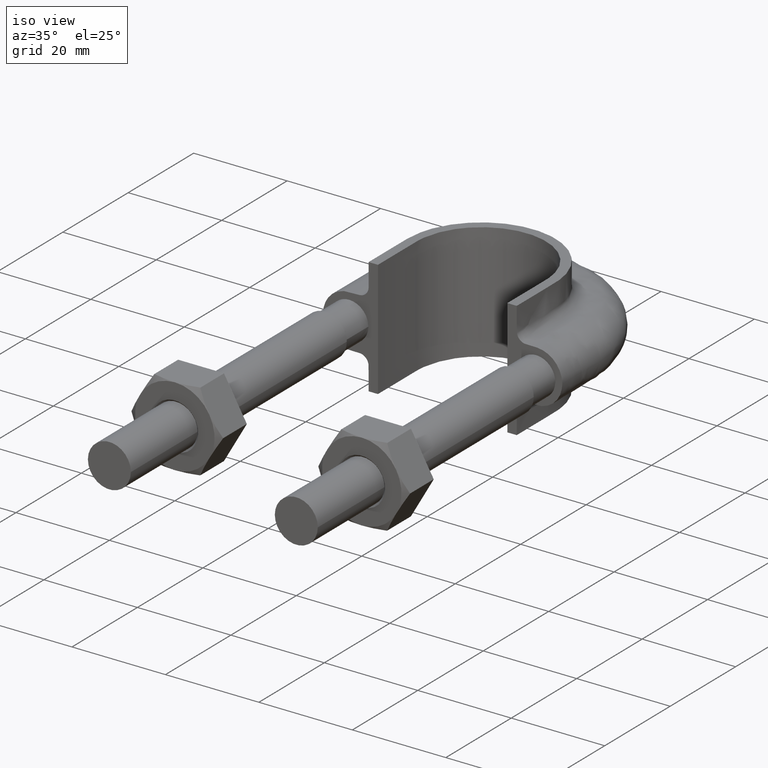
[diagram: clean part render]
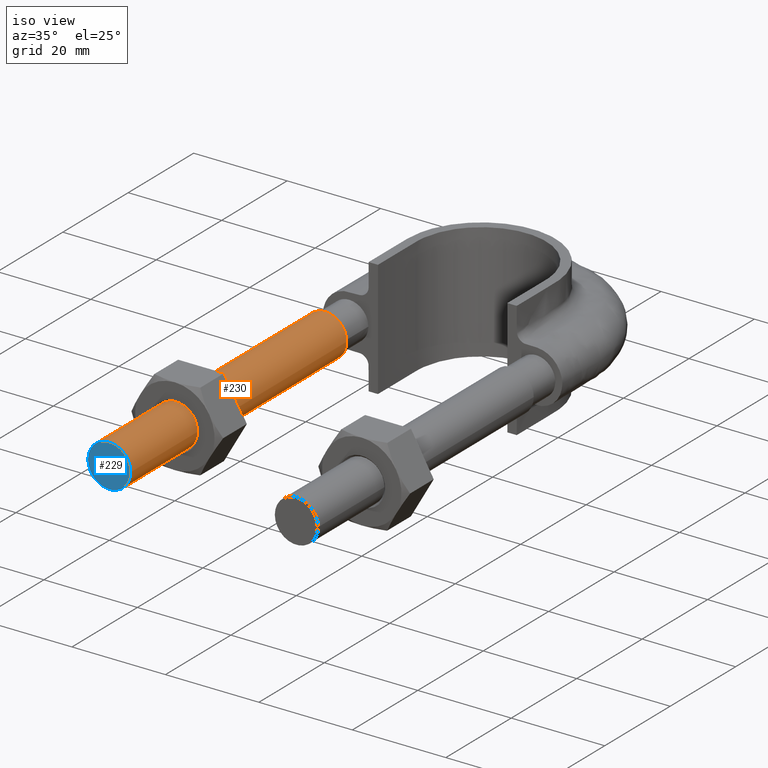
[diagram: same view with the hole feature highlighted: cylindrical wall and planar end face, labeled with their STEP entity ids]
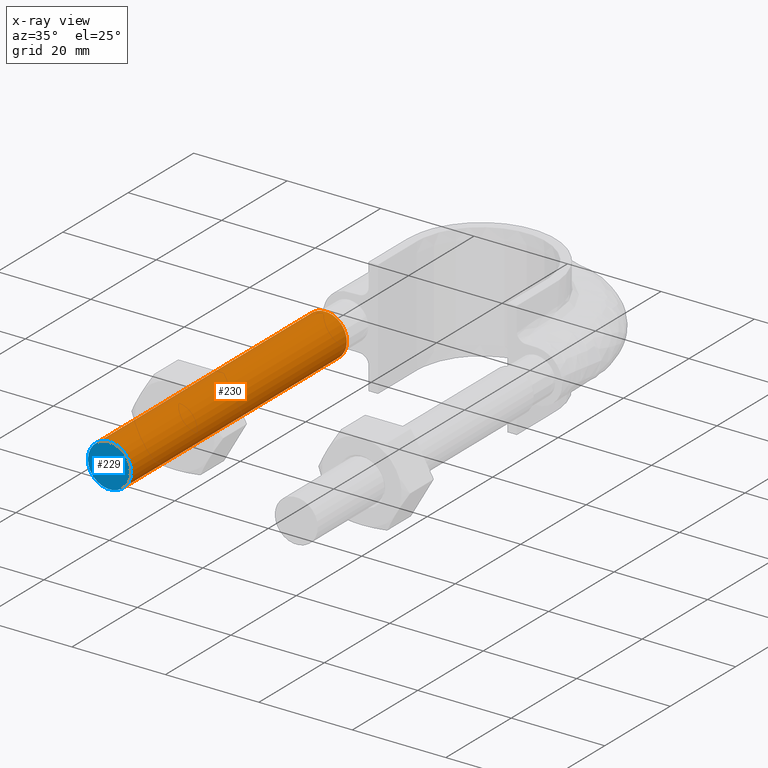
[diagram: x-ray of the same camera — body ghosted, the hole faces saturated]
A machine part, iso view. The highlighted faces form one hole feature of diameter 9.2 mm: the cylindrical wall (entity #230, orange) and its adjacent planar end face (entity #229, blue) — they share a circular edge in the B-rep.
The next image is the same camera in x-ray (body ghosted, the hole faces saturated) — the bore reads through the body.
Wall:
#230 = ADVANCED_FACE( '', ( #307, #308 ), #309, .T. );
#307 = FACE_OUTER_BOUND( '', #1165, .T. );
#308 = FACE_OUTER_BOUND( '', #1166, .T. );
#309 = CYLINDRICAL_SURFACE( '', #1167, 4.60000000000000 );
#1165 = EDGE_LOOP( '', ( #1370 ) );
#1166 = EDGE_LOOP( '', ( #1371 ) );
#1167 = AXIS2_PLACEMENT_3D( '', #1372, #1373, #1374 );
#1370 = ORIENTED_EDGE( '', *, *, #1754, .T. );
#1371 = ORIENTED_EDGE( '', *, *, #1753, .F. );
#1372 = CARTESIAN_POINT( '', ( -20.0000000000000, 66.0000000000000, 4.04120096761385E-015 ) );
#1373 = DIRECTION( '', ( 4.89842541528951E-016, 1.00000000000000, 6.12303176911189E-017 ) );
#1374 = DIRECTION( '', ( 1.00000000000000, -4.89842541528951E-016, -2.24949108273321E-032 ) );
#1753 = EDGE_CURVE( '', #1891, #1891, #1892, .T. );
#1754 = EDGE_CURVE( '', #1893, #1893, #1894, .T. );
#1891 = VERTEX_POINT( '', #2269 );
#1892 = CIRCLE( '', #2270, 4.60000000000000 );
#1893 = VERTEX_POINT( '', #2271 );
#1894 = CIRCLE( '', #2272, 4.60000000000000 );
#2269 = CARTESIAN_POINT( '', ( -15.4000000000000, 7.54357513954585E-015, 3.46421626740914E-031 ) );
#2270 = AXIS2_PLACEMENT_3D( '', #2629, #2630, #2631 );
#2271 = CARTESIAN_POINT( '', ( -15.4000000000000, 66.0000000000000, 4.04120096761385E-015 ) );
#2272 = AXIS2_PLACEMENT_3D( '', #2632, #2633, #2634 );
#2629 = CARTESIAN_POINT( '', ( -20.0000000000000, 9.79685083057902E-015, 4.49898216546641E-031 ) );
#2630 = DIRECTION( '', ( -4.89842541528951E-016, -1.00000000000000, -6.12303176911189E-017 ) );
#2631 = DIRECTION( '', ( 1.00000000000000, -4.89842541528951E-016, -2.24949108273321E-032 ) );
#2632 = CARTESIAN_POINT( '', ( -20.0000000000000, 66.0000000000000, 4.04120096761385E-015 ) );
#2633 = DIRECTION( '', ( -4.89842541528951E-016, -1.00000000000000, -6.12303176911189E-017 ) );
#2634 = DIRECTION( '', ( 1.00000000000000, -4.89842541528951E-016, -2.24949108273321E-032 ) );
End face:
#229 = ADVANCED_FACE( '', ( #305 ), #306, .T. );
#305 = FACE_OUTER_BOUND( '', #1163, .T. );
#306 = PLANE( '', #1164 );
#1163 = EDGE_LOOP( '', ( #1366 ) );
#1164 = AXIS2_PLACEMENT_3D( '', #1367, #1368, #1369 );
#1366 = ORIENTED_EDGE( '', *, *, #1753, .T. );
#1367 = CARTESIAN_POINT( '', ( -20.0000000000000, 9.79685083057902E-015, 4.49898216546641E-031 ) );
#1368 = DIRECTION( '', ( -4.89842541528951E-016, -1.00000000000000, -6.12303176911189E-017 ) );
#1369 = DIRECTION( '', ( 1.00000000000000, -4.89842541528951E-016, -2.24949108273321E-032 ) );
#1753 = EDGE_CURVE( '', #1891, #1891, #1892, .T. );
#1891 = VERTEX_POINT( '', #2269 );
#1892 = CIRCLE( '', #2270, 4.60000000000000 );
#2269 = CARTESIAN_POINT( '', ( -15.4000000000000, 7.54357513954585E-015, 3.46421626740914E-031 ) );
#2270 = AXIS2_PLACEMENT_3D( '', #2629, #2630, #2631 );
#2629 = CARTESIAN_POINT( '', ( -20.0000000000000, 9.79685083057902E-015, 4.49898216546641E-031 ) );
#2630 = DIRECTION( '', ( -4.89842541528951E-016, -1.00000000000000, -6.12303176911189E-017 ) );
#2631 = DIRECTION( '', ( 1.00000000000000, -4.89842541528951E-016, -2.24949108273321E-032 ) );